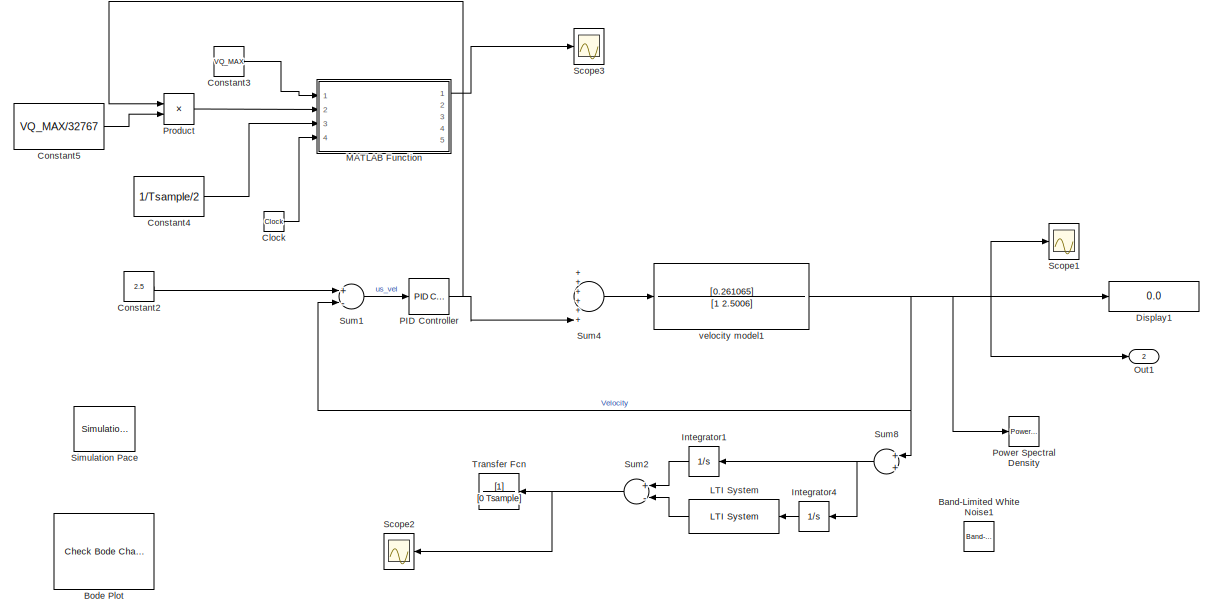
[diagram: root canvas - part 1/2, full width, top band]
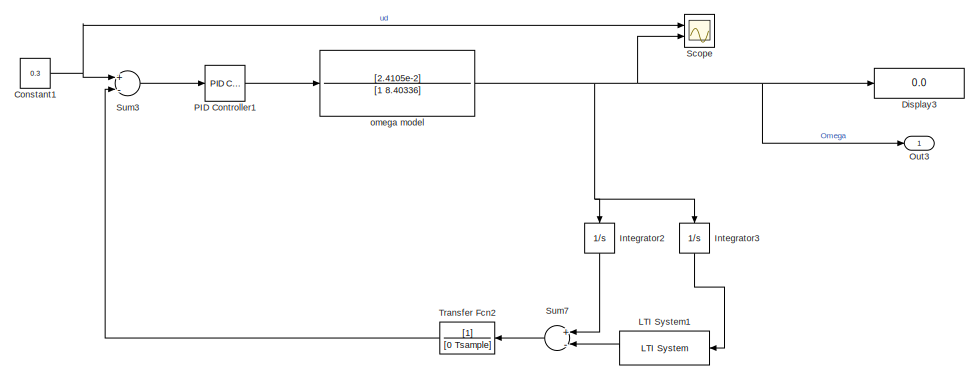
[diagram: root canvas - part 2/2, full width, bottom band]
MODEL slx_af843ab7496e
KIND model
CONFIG AbsTol = auto
CONFIG FixedStep = 0.1
CONFIG MaxStep = auto
CONFIG MinStep = auto
CONFIG RelTol = 1e-3
CONFIG SampleTimeConstraint = Unconstrained
CONFIG Solver = FixedStepAuto
CONFIG SolverMode = Auto
CONFIG SolverName = FixedStepAuto
CONFIG StartTime = 0.0
CONFIG StopTime = inf
BLOCK [Reference] Band-Limited White Noise1  REF=simulink/Sources/Band-Limited
White Noise
  Ports = [0, 1]
  SourceBlock = simulink/Sources/Band-Limited\nWhite Noise
  SourceType = Band-Limited White Noise.
BLOCK [Reference] Bode Plot  REF=slctrlblks/Model Verification/Check Bode 
Characteristics
  InstantiateOnLoad = on
  Ports = []
  SourceBlock = slctrlblks/Model Verification/Check Bode \nCharacteristics
  SourceType = Checks_Bode
BLOCK [Clock] Clock
BLOCK [Constant] Constant1
  SampleTime = -1
  Value = 0.3
BLOCK [Constant] Constant2
  Value = 2.5
BLOCK [Constant] Constant3
  SampleTime = -1
  Value = VQ_MAX
BLOCK [Constant] Constant4
  SampleTime = -1
  Value = 1/Tsample/2
BLOCK [Constant] Constant5
  SampleTime = -1
  Value = VQ_MAX/32767
BLOCK [Display] Display1
  Decimation = 1
  Ports = [1]
BLOCK [Display] Display3
  Decimation = 1
  Ports = [1]
BLOCK [Integrator] Integrator1
  Ports = [1, 1]
BLOCK [Integrator] Integrator2
  Ports = [1, 1]
BLOCK [Integrator] Integrator3
  Ports = [1, 1]
BLOCK [Integrator] Integrator4
  Ports = [1, 1]
BLOCK [Reference] LTI System  REF=cstblocks/LTI System
  Ports = [1, 1]
  SourceBlock = cstblocks/LTI System
  SourceType = LTI Block
BLOCK [Reference] LTI System1  REF=cstblocks/LTI System
  Ports = [1, 1]
  SourceBlock = cstblocks/LTI System
  SourceType = LTI Block
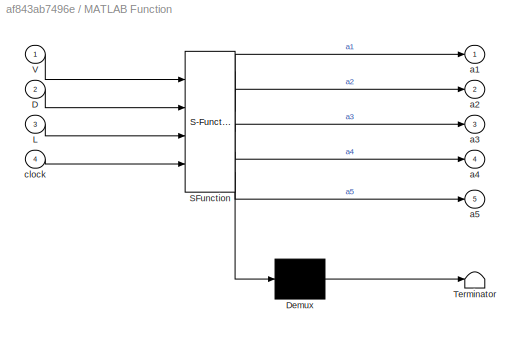
BLOCK [SubSystem] MATLAB Function
  ErrorFcn = Stateflow.Translate.translate
  PermitHierarchicalResolution = ExplicitOnly
  Ports = [4, 5]
  RequestExecContextInheritance = off
  SFBlockType = MATLAB Function
  TreatAsAtomicUnit = on
  Variant = off
BLOCK [Demux] MATLAB Function/ Demux 
  Outputs = 1
  Ports = [1, 1]
BLOCK [S-Function] MATLAB Function/ SFunction 
  EnableBusSupport = on
  FunctionName = sf_sfun
  PortCounts = [4 6]
  Ports = [4, 6]
  SFunctionDeploymentMode = off
  Tag = Stateflow S-Function andbot1dot2_voltage_loop_currectVersion 2
BLOCK [Terminator] MATLAB Function/ Terminator 
BLOCK [Inport] MATLAB Function/D
  IconDisplay = Port number
  Port = 2
BLOCK [Inport] MATLAB Function/L
  IconDisplay = Port number
  Port = 3
BLOCK [Inport] MATLAB Function/V
  IconDisplay = Port number
BLOCK [Outport] MATLAB Function/a1
  IconDisplay = Port number
BLOCK [Outport] MATLAB Function/a2
  IconDisplay = Port number
  Port = 2
BLOCK [Outport] MATLAB Function/a3
  IconDisplay = Port number
  Port = 3
BLOCK [Outport] MATLAB Function/a4
  IconDisplay = Port number
  Port = 4
BLOCK [Outport] MATLAB Function/a5
  IconDisplay = Port number
  Port = 5
BLOCK [Inport] MATLAB Function/clock
  IconDisplay = Port number
  Port = 4
BLOCK [Outport] Out1
  IconDisplay = Port number
  Port = 2
BLOCK [Outport] Out3
  IconDisplay = Port number
BLOCK [Reference] PID Controller  REF=simulink/Continuous/PID Controller
  Ports = [1, 1]
  SourceBlock = simulink/Continuous/PID Controller
  SourceType = PID 1dof
BLOCK [Reference] PID Controller1  REF=simulink/Continuous/PID Controller
  Ports = [1, 1]
  SourceBlock = simulink/Continuous/PID Controller
  SourceType = PID 1dof
BLOCK [Reference] Power Spectral Density  REF=simulink_extras/Additional
Sinks/Power Spectral
Density
  Ports = [1]
  SourceBlock = simulink_extras/Additional\nSinks/Power Spectral\nDensity
  SourceType = Power Spectral Density
BLOCK [Product] Product
  InputSameDT = off
  OutDataTypeStr = Inherit: Inherit via internal rule
  Ports = [2, 1]
  RndMeth = Floor
  SaturateOnIntegerOverflow = off
BLOCK [Scope] Scope
  NumInputPorts = 2
  Ports = [2]
  ScopeSpecificationString = Simulink.scopes.TimeScopeBlockCfg('CurrentConfiguration', extmgr.ConfigurationSet(extmgr.Configuration('Core','General UI',true),extmgr.Configuration('Core','Source UI',true),extmgr.Configuration('Sources','WiredSimulink',true),extmgr.Configuration('Visuals','Time Domain',true,'SerializedDisplays',{struct('MinYLimReal','-15095614451449498306029096629021984366547006329569037733787874837653224484617...<+2691ch>
BLOCK [Scope] Scope1
  Ports = [1]
  ScopeSpecificationString = Simulink.scopes.TimeScopeBlockCfg('CurrentConfiguration', extmgr.ConfigurationSet(extmgr.Configuration('Core','General UI',true),extmgr.Configuration('Core','Source UI',true),extmgr.Configuration('Sources','WiredSimulink',true,'DataLoggingVariableName','ScopeData1'),extmgr.Configuration('Visuals','Time Domain',true,'SerializedDisplays',{struct('MinYLimReal','-0.13903','MaxYLimReal','1.25128','YLab...<+1440ch>
BLOCK [Scope] Scope2
  Ports = [1]
  ScopeSpecificationString = Simulink.scopes.TimeScopeBlockCfg('CurrentConfiguration', extmgr.ConfigurationSet(extmgr.Configuration('Core','General UI',true),extmgr.Configuration('Core','Source UI',true),extmgr.Configuration('Sources','WiredSimulink',true,'DataLoggingVariableName','ScopeData1'),extmgr.Configuration('Visuals','Time Domain',true,'SerializedDisplays',{struct('MinYLimReal','-10.73719','MaxYLimReal','13.73684','YL...<+1449ch>
BLOCK [Scope] Scope3
  Ports = [1]
  ScopeSpecificationString = Simulink.scopes.TimeScopeBlockCfg('CurrentConfiguration', extmgr.ConfigurationSet(extmgr.Configuration('Core','General UI',true),extmgr.Configuration('Core','Source UI',true),extmgr.Configuration('Sources','WiredSimulink',true,'DataLoggingVariableName','ScopeData1'),extmgr.Configuration('Visuals','Time Domain',true,'SerializedDisplays',{struct('MinYLimReal','-164.82867','MaxYLimReal','7.94459','YL...<+1511ch>
BLOCK [Reference] Simulation Pace  REF=aerolibanimutils/Simulation Pace
  AttributesFormatString = %<SleepMode>\n%<SimulationPace> sec/sec
  Ports = []
  SourceBlock = aerolibanimutils/Simulation Pace
  SourceType = Simulation Pace
BLOCK [Sum] Sum1
  InputSameDT = off
  Inputs = +-
  OutDataTypeStr = Inherit: Inherit via internal rule
  Ports = [2, 1]
  SaturateOnIntegerOverflow = off
BLOCK [Sum] Sum2
  InputSameDT = off
  Inputs = +-
  OutDataTypeStr = Inherit: Inherit via internal rule
  Ports = [2, 1]
  SaturateOnIntegerOverflow = off
BLOCK [Sum] Sum3
  InputSameDT = off
  Inputs = +-
  OutDataTypeStr = Inherit: Inherit via internal rule
  Ports = [2, 1]
  SaturateOnIntegerOverflow = off
BLOCK [Sum] Sum4
  InputSameDT = off
  Inputs = ++++++
  OutDataTypeStr = Inherit: Inherit via internal rule
  Ports = [6, 1]
  SaturateOnIntegerOverflow = off
BLOCK [Sum] Sum7
  InputSameDT = off
  Inputs = +-
  OutDataTypeStr = Inherit: Inherit via internal rule
  Ports = [2, 1]
  SaturateOnIntegerOverflow = off
BLOCK [Sum] Sum8
  InputSameDT = off
  OutDataTypeStr = Inherit: Inherit via internal rule
  Ports = [2, 1]
  SaturateOnIntegerOverflow = off
BLOCK [TransferFcn] Transfer Fcn
  Denominator = [0 Tsample]
BLOCK [TransferFcn] Transfer Fcn2
  Denominator = [0 Tsample]
BLOCK [TransferFcn] omega model
  Denominator = [1 8.40336]
  Numerator = [2.4105e-2]
BLOCK [TransferFcn] velocity model1
  Denominator = [1 2.5006]
  Numerator = [0.261065]
LINE Clock:1 -> MATLAB Function:4
NET Constant1:1 -> Scope:1, Sum3:1
LINE Constant2:1 -> Sum1:1
LINE Constant3:1 -> MATLAB Function:1
LINE Constant4:1 -> MATLAB Function:3
LINE Constant5:1 -> Product:2
LINE Integrator1:1 -> Sum2:1
LINE Integrator2:1 -> Sum7:1
LINE Integrator3:1 -> LTI System1:1
LINE Integrator4:1 -> LTI System:1
LINE LTI System1:1 -> Sum7:2
LINE LTI System:1 -> Sum2:2
LINE MATLAB Function:1 -> Scope3:1
LINE PID Controller1:1 -> omega model:1
NET PID Controller:1 -> Product:1, Sum4:6
LINE Product:1 -> MATLAB Function:2
LINE Sum1:1 -> PID Controller:1
NET Sum2:1 -> Scope2:1, Transfer Fcn:1
LINE Sum3:1 -> PID Controller1:1
LINE Sum4:1 -> velocity model1:1
LINE Sum7:1 -> Transfer Fcn2:1
NET Sum8:1 -> Integrator1:1, Integrator4:1
LINE Transfer Fcn2:1 -> Sum3:2
NET omega model:1 -> Display3:1, Integrator2:1, Integrator3:1, Out3:1, Scope:2
NET velocity model1:1 -> Display1:1, Out1:1, Power Spectral Density:1, Scope1:1, Sum1:2, Sum8:1
note: NET lines group one-source signal fan-out (src -> all destinations, sorted); 1:1 wires keep LINE
CHART MATLAB Function states=1 transitions=1
  STATE_LABEL 'eML_blk_kernel()'
  STATE_LABEL 'SCRIPT:\nfunction [a1,a2, a3, a4, a5]  = PWM_noise_sine(V, D, L, clock)\n%#codegen\na = 1:5;\n\nfor n = 1:5\n    a(n) = 2/ n * V / pi * sin(clock*pi*D);\nend\na1 = a(1);\na2 = a(2);\na3 = a(3);\na4 = a(4);\na5 = a(5);\n\n'
